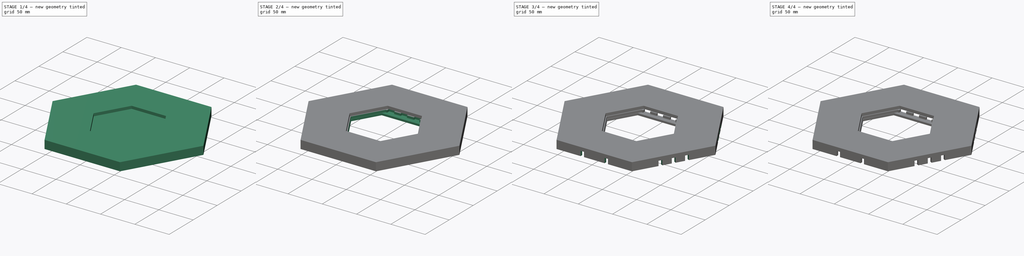
[diagram: build sequence overview — one tinted view per stage of 4, left to right]
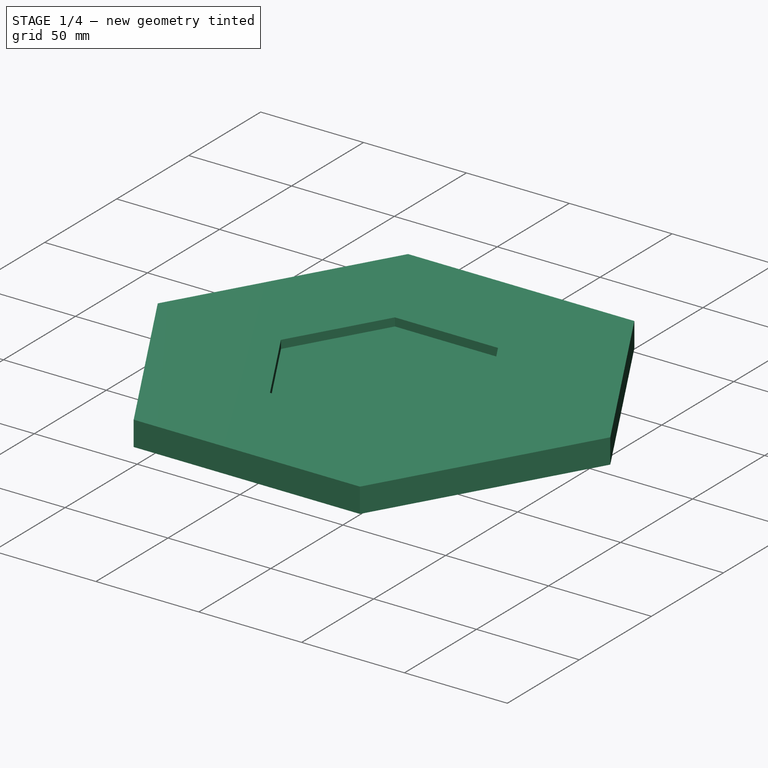
[diagram: stage 1 of 4 — iso view after this stage's code; geometry added in this stage tinted green]
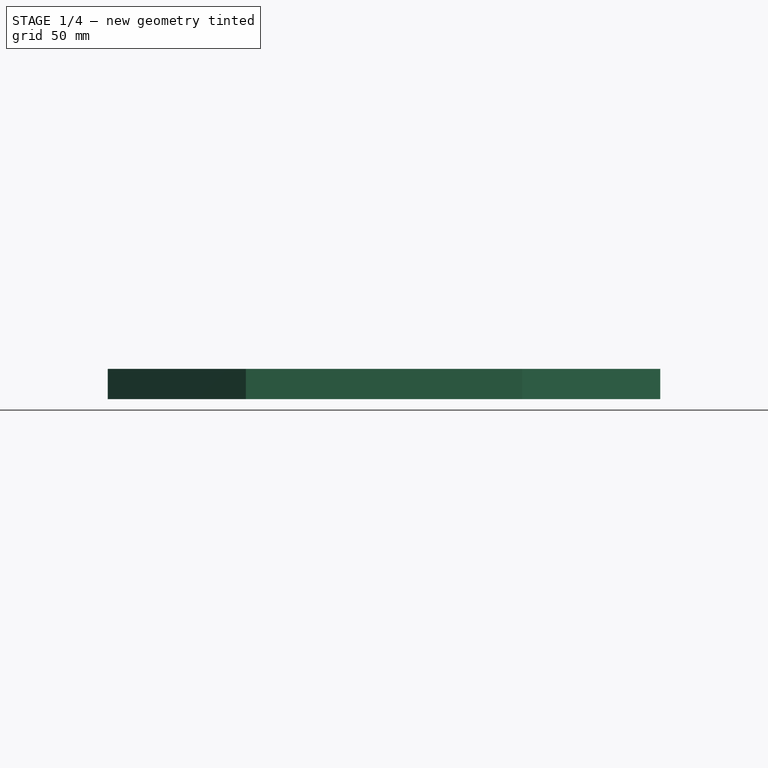
[diagram: stage 1 of 4 — front view after this stage's code; geometry added in this stage tinted green]
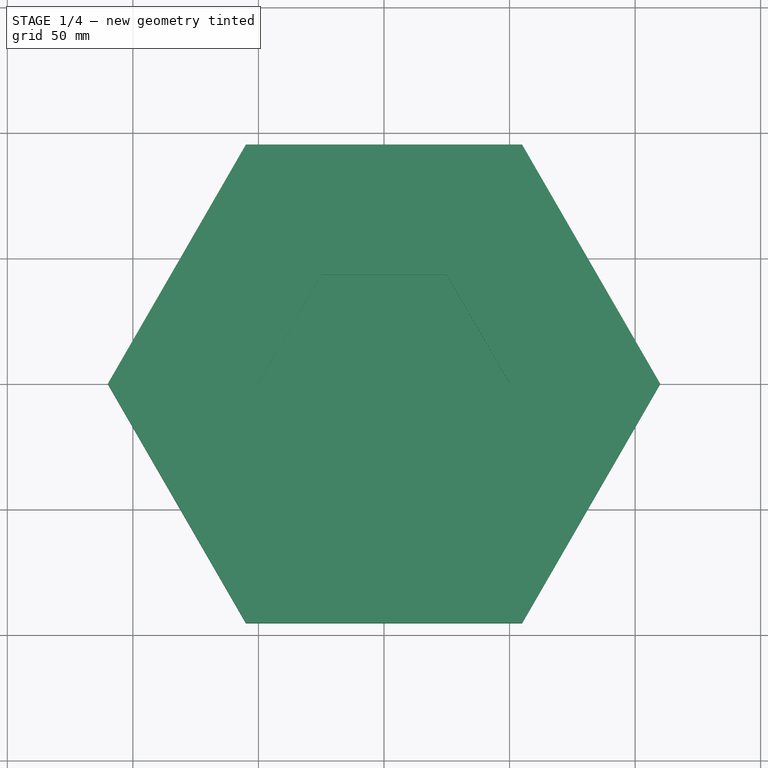
[diagram: stage 1 of 4 — top view after this stage's code; geometry added in this stage tinted green]
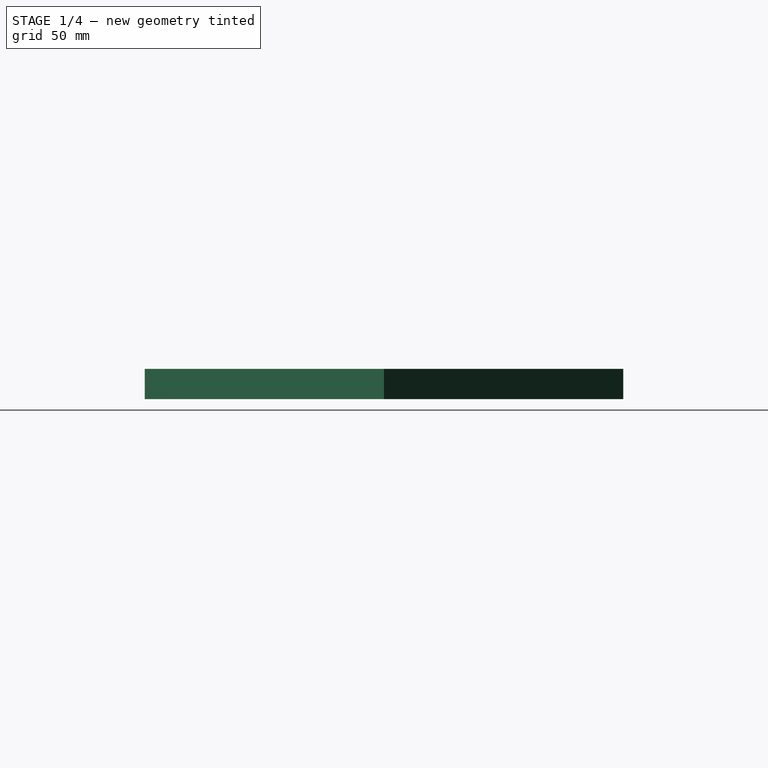
[diagram: stage 1 of 4 — right view after this stage's code; geometry added in this stage tinted green]
FCSTD DOCUMENT  (FreeCAD 0.19R24276 (Git))
Label: sao-wall-frame
License: All rights reserved
LicenseURL: http://en.wikipedia.org/wiki/All_rights_reserved
objects: Sketcher::SketchObject×10, PartDesign::Pocket×8, PartDesign::Pad×2, PartDesign::Body×1
note: 31 computed .brp shape members not serialized (recipe doc carries the construction recipe); baked Part::Feature solids carry a one-line shape summary decoded from their .brp

FEATURE [Sketcher::SketchObject] Sketch  label="Base"
  FullyConstrained = true
  MapMode = 5
  Support = -> [XY_Plane]
  sketch-geometry (7):
    g0: LineSegment StartX=-110 StartY=0 StartZ=0 EndX=-55 EndY=-95.2628 EndZ=0
    g1: LineSegment StartX=-55 StartY=-95.2628 StartZ=0 EndX=55 EndY=-95.2628 EndZ=0
    g2: LineSegment StartX=55 StartY=-95.2628 StartZ=0 EndX=110 EndY=-1.42e-14 EndZ=0
    g3: LineSegment StartX=110 StartY=-1.42e-14 StartZ=0 EndX=55 EndY=95.2628 EndZ=0
    g4: LineSegment StartX=55 StartY=95.2628 StartZ=0 EndX=-55 EndY=95.2628 EndZ=0
    g5: LineSegment StartX=-55 StartY=95.2628 StartZ=0 EndX=-110 EndY=0 EndZ=0
    g6: Circle CenterX=0 CenterY=0 CenterZ=0 NormalX=0 NormalY=0 NormalZ=1 AngleXU=0 Radius=110
  constraints (16):
    c: Coincident(g0,g1)
    c: Coincident(g1,g2)
    c: Coincident(g2,g3)
    c: Coincident(g3,g4)
    c: Coincident(g4,g5)
    c: Coincident(g5,g0)
    c: Equal(g0, g1-g5) x5
    c: PointOnObject(g0,g6)
    c: PointOnObject(g1,g6)
    c: PointOnObject(g2,g6)
    c: PointOnObject(g3,g6)
    c: PointOnObject(g4,g6)
    c: PointOnObject(g5,g6)
    c: Coincident(g6,g-1)
    c: PointOnObject(g5,g-1)
    c: DistanceX(g4,g4) = 110
FEATURE [PartDesign::Pad] Pad
  Direction = (1,1,1)
  Length = 12
  Length2 = 98.42
  Profile = -> Sketch
  Type = 0
FEATURE [Sketcher::SketchObject] Sketch001
  FullyConstrained = true
  MapMode = 5
  Placement = pos=(0,0,12) rot=(0,0,1;0rad)
  Support = -> [Pad]
  sketch-geometry (7):
    g0: LineSegment StartX=-50.1 StartY=0 StartZ=0 EndX=-25.05 EndY=-43.3879 EndZ=0
    g1: LineSegment StartX=-25.05 StartY=-43.3879 StartZ=0 EndX=25.05 EndY=-43.3879 EndZ=0
    g2: LineSegment StartX=25.05 StartY=-43.3879 StartZ=0 EndX=50.1 EndY=7.745e-13 EndZ=0
    g3: LineSegment StartX=50.1 StartY=7.745e-13 StartZ=0 EndX=25.05 EndY=43.3879 EndZ=0
    g4: LineSegment StartX=25.05 StartY=43.3879 StartZ=0 EndX=-25.05 EndY=43.3879 EndZ=0
    g5: LineSegment StartX=-25.05 StartY=43.3879 StartZ=0 EndX=-50.1 EndY=0 EndZ=0
    g6: Circle CenterX=0 CenterY=0 CenterZ=0 NormalX=0 NormalY=0 NormalZ=1 AngleXU=0 Radius=50.1
  constraints (16):
    c: Coincident(g0,g1)
    c: Coincident(g1,g2)
    c: Coincident(g2,g3)
    c: Coincident(g3,g4)
    c: Coincident(g4,g5)
    c: Coincident(g5,g0)
    c: Equal(g0, g1-g5) x5
    c: PointOnObject(g0,g6)
    c: PointOnObject(g1,g6)
    c: PointOnObject(g2,g6)
    c: PointOnObject(g3,g6)
    c: PointOnObject(g4,g6)
    c: PointOnObject(g5,g6)
    c: Coincident(g6,g-1)
    c: PointOnObject(g5,g-1)
    c: DistanceX(g4,g4) = 50.1
FEATURE [PartDesign::Pocket] Pocket
  BaseFeature = -> Pad
  Length = 4
  Length2 = 98.42
  Profile = -> Sketch001
  Type = 0
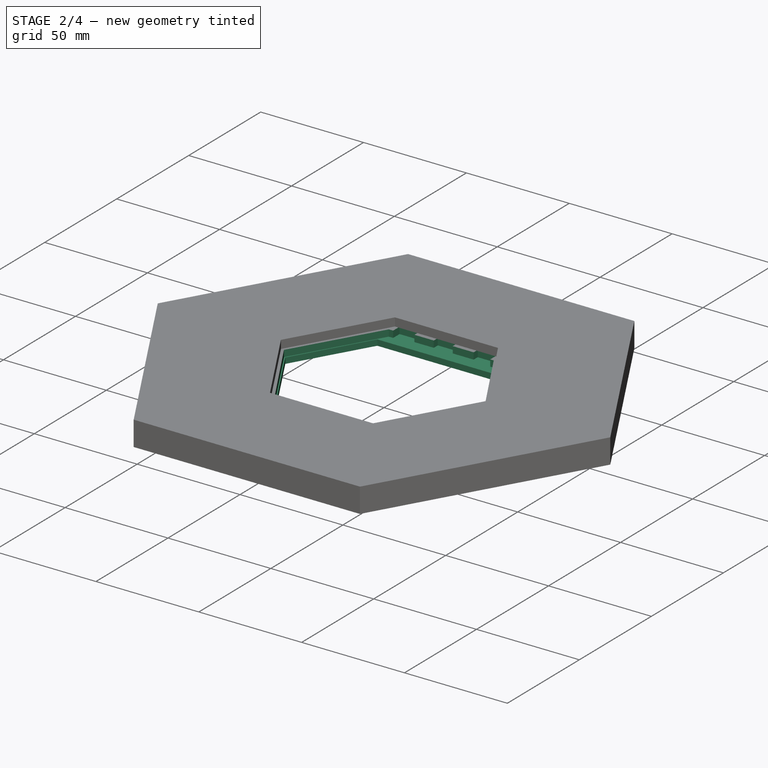
[diagram: stage 2 of 4 — iso view after this stage's code; geometry added in this stage tinted green]
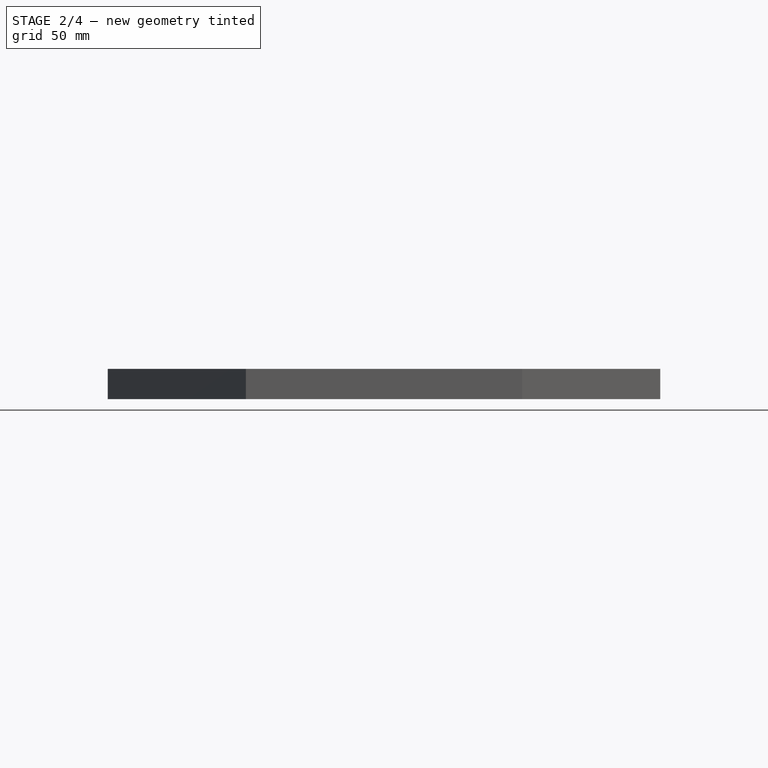
[diagram: stage 2 of 4 — front view after this stage's code; geometry added in this stage tinted green]
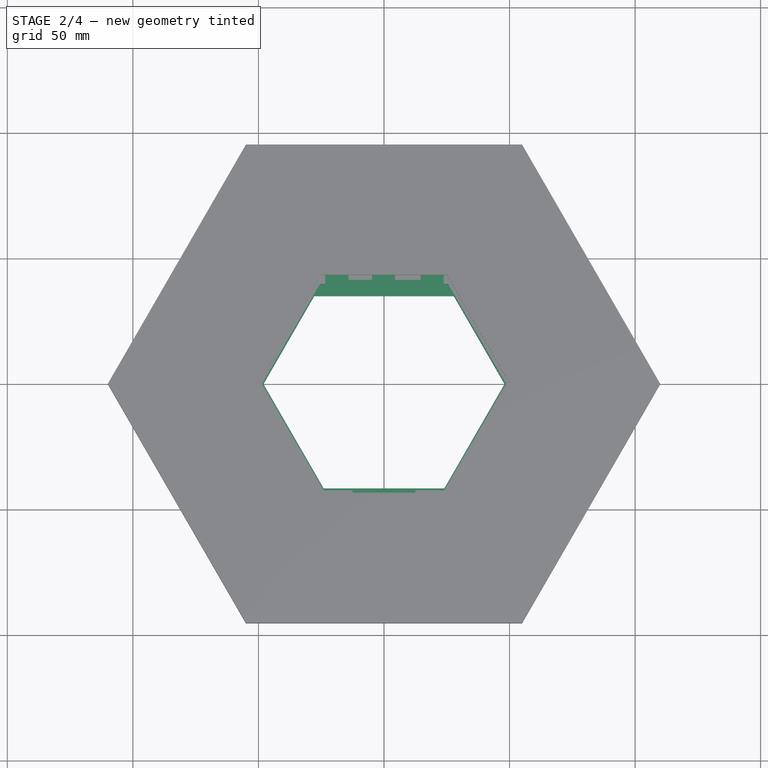
[diagram: stage 2 of 4 — top view after this stage's code; geometry added in this stage tinted green]
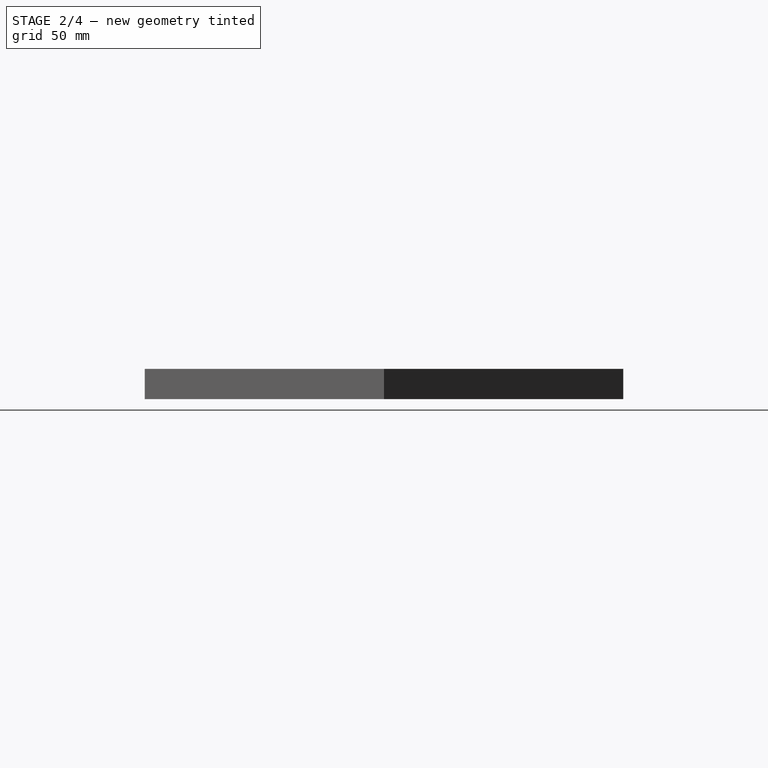
[diagram: stage 2 of 4 — right view after this stage's code; geometry added in this stage tinted green]
FEATURE [Sketcher::SketchObject] Sketch002
  FullyConstrained = false
  MapMode = 5
  Placement = pos=(0,0,0) rot=(1,0,0;3.14159rad)
  Support = -> [Pocket]
  sketch-geometry (12):
    g0: LineSegment StartX=-106 StartY=0 StartZ=0 EndX=-53 EndY=-91.7987 EndZ=0
    g1: LineSegment StartX=53 StartY=-91.7987 StartZ=0 EndX=106 EndY=0 EndZ=0
    g2: Circle CenterX=0 CenterY=0 CenterZ=0 NormalX=0 NormalY=0 NormalZ=1 AngleXU=0 Radius=106
    g3: LineSegment StartX=53 StartY=-91.7987 StartZ=0 EndX=-53 EndY=-91.7987 EndZ=0
    g4: ArcOfCircle CenterX=-1.1e-15 CenterY=92.2987 CenterZ=0 NormalX=0 NormalY=0 NormalZ=1 AngleXU=0 Radius=1.5 StartAngle=3.5e-15 EndAngle=3.14159
    g5: LineSegment StartX=1.5 StartY=91.7987 StartZ=0 EndX=1.5 EndY=92.2987 EndZ=0
    g6: LineSegment StartX=-1.5 StartY=91.7987 StartZ=0 EndX=-1.5 EndY=92.2987 EndZ=0
    g7: LineSegment StartX=-53 StartY=91.7987 StartZ=0 EndX=-1.5 EndY=91.7987 EndZ=0
    g8: LineSegment StartX=1.5 StartY=91.7987 StartZ=0 EndX=53 EndY=91.7987 EndZ=0
    g9: LineSegment StartX=-106 StartY=0 StartZ=0 EndX=-53 EndY=91.7987 EndZ=0
    g10: LineSegment StartX=53 StartY=91.7987 StartZ=0 EndX=106 EndY=0 EndZ=0
    g11: GeomPoint X=1.56174e-05 Y=93.7987 Z=0
  constraints (34):
    c: Equal(g0,g1)
    c: PointOnObject(g0,g2)
    c: PointOnObject(g1,g2)
    c: PointOnObject(g1,g2)
    c: PointOnObject(g8,g2)
    c: PointOnObject(g7,g2)
    c: PointOnObject(g0,g2)
    c: Coincident(g2,g-1)
    c: PointOnObject(g0,g-1)
    c: DistanceX(g7,g8) = 106
    c: Horizontal(g3)
    c: PointOnObject(g1,g-1)
    c: Tangent(g5,g4) = -1.5708
    c: Tangent(g6,g4) = 1.5708
    c: Vertical(g5)
    c: Coincident(g7,g6)
    c: Horizontal(g7)
    c: Coincident(g8,g5)
    c: Horizontal(g8)
    c: DistanceY(g5,g4) = 0.5
    c: DistanceX(g4,g4) = 3
    c: DistanceX(g6,g5) = 3
    c: Equal(g7,g8)
    c: Coincident(g9,g0)
    c: Coincident(g9,g7)
    c: Coincident(g10,g8)
    c: Coincident(g10,g1)
    c: Equal(g9,g10)
    c: Equal(g3,g0)
    c: Equal(g1,g10)
    c: Coincident(g3,g0)
    c: PointOnObject(g3,g2)
    c: PointOnObject(g11,g4)
    c: DistanceY(g5,g11) = 2
FEATURE [PartDesign::Pocket] Pocket001
  BaseFeature = -> Pocket
  Length = 2
  Length2 = 98.42
  Profile = -> Sketch002
  Type = 0
FEATURE [Sketcher::SketchObject] Sketch003
  FullyConstrained = true
  MapMode = 5
  Placement = pos=(0,0,8) rot=(0,0,1;0rad)
  Support = -> [Pocket001]
  sketch-geometry (23):
    g0: LineSegment StartX=-48.615 StartY=0 StartZ=0 EndX=-24 EndY=-42.3514 EndZ=0
    g1: LineSegment StartX=24 StartY=-42.3514 StartZ=0 EndX=48.615 EndY=0 EndZ=0
    g2: LineSegment StartX=48.615 StartY=0 StartZ=0 EndX=25.5 EndY=39.7706 EndZ=0
    g3: LineSegment StartX=-25.5 StartY=39.7706 StartZ=0 EndX=-48.615 EndY=0 EndZ=0
    g4: LineSegment StartX=-23.4 StartY=39.7706 StartZ=0 EndX=-23.4 EndY=44.21 EndZ=0
    g5: LineSegment StartX=23.8 StartY=44.21 StartZ=0 EndX=23.8 EndY=39.7706 EndZ=0
    g6: LineSegment StartX=-24 StartY=-42.3514 StartZ=0 EndX=-12.5 EndY=-42.3514 EndZ=0
    g7: LineSegment StartX=-12.5 StartY=-42.3514 StartZ=0 EndX=-12.5 EndY=-44.3514 EndZ=0
    g8: LineSegment StartX=-12.5 StartY=-44.3514 StartZ=0 EndX=12.5 EndY=-44.3514 EndZ=0
    g9: LineSegment StartX=12.5 StartY=-44.3514 StartZ=0 EndX=12.5 EndY=-42.3514 EndZ=0
    g10: LineSegment StartX=12.5 StartY=-42.3514 StartZ=0 EndX=24 EndY=-42.3514 EndZ=0
    g11: LineSegment StartX=-25.5 StartY=39.7706 StartZ=0 EndX=-23.4 EndY=39.7706 EndZ=0
    g12: LineSegment StartX=23.8 StartY=39.7706 StartZ=0 EndX=25.5 EndY=39.7706 EndZ=0
    g13: LineSegment StartX=-23.4 StartY=44.21 StartZ=0 EndX=-14.2 EndY=44.21 EndZ=0
    g14: LineSegment StartX=-14.2 StartY=44.21 StartZ=0 EndX=-14.2 EndY=41.41 EndZ=0
    g15: LineSegment StartX=-14.2 StartY=41.41 StartZ=0 EndX=-4.8 EndY=41.41 EndZ=0
    g16: LineSegment StartX=-4.8 StartY=41.41 StartZ=0 EndX=-4.8 EndY=44.21 EndZ=0
    g17: LineSegment StartX=-4.8 StartY=44.21 StartZ=0 EndX=4.4 EndY=44.21 EndZ=0
    g18: LineSegment StartX=4.4 StartY=44.21 StartZ=0 EndX=4.4 EndY=41.41 EndZ=0
    g19: LineSegment StartX=4.4 StartY=41.41 StartZ=0 EndX=14.6 EndY=41.41 EndZ=0
    g20: LineSegment StartX=14.6 StartY=41.41 StartZ=0 EndX=14.6 EndY=44.21 EndZ=0
    g21: LineSegment StartX=14.6 StartY=44.21 StartZ=0 EndX=23.8 EndY=44.21 EndZ=0
    g22: LineSegment StartX=-25 StartY=43.41 StartZ=0 EndX=25 EndY=43.41 EndZ=0
  constraints (68):
    c: Coincident(g1,g2)
    c: Coincident(g3,g0)
    c: Equal(g0,g1)
    c: PointOnObject(g3,g-1)
    c: Equal(g3,g2)
    c: DistanceX(g0,g1) = 48
    c: Parallel(g2,g0)
    c: Parallel(g1,g3)
    c: Vertical(g4)
    c: Vertical(g5)
    c: Coincident(g6,g0)
    c: Horizontal(g6)
    c: Coincident(g7,g6)
    c: Vertical(g7)
    c: Horizontal(g8)
    c: Coincident(g10,g1)
    c: Horizontal(g10)
    c: Vertical(g9)
    c: Coincident(g10,g9)
    c: DistanceX(g6,g9) = 25
    c: Coincident(g8,g7)
    c: Coincident(g8,g9)
    c: Symmetric(g6,g9,g-2)
    c: DistanceY(g7,g6) = 2
    c: Distance(g3) = 46
    c: Coincident(g11,g3)
    c: Coincident(g11,g4)
    c: Horizontal(g11)
    c: Coincident(g12,g5)
    c: Coincident(g12,g2)
    c: Horizontal(g12)
    c: DistanceX(g0,g1) = 97.23
    c: Symmetric(g0,g1,g-2)
    c: DistanceX(g3,g2) = 51
    c: Coincident(g13,g4)
    c: Horizontal(g13)
    c: Coincident(g14,g13)
    c: Vertical(g14)
    c: Horizontal(g15)
    c: Vertical(g16)
    c: Horizontal(g17)
    c: Vertical(g18)
    c: Horizontal(g19)
    c: Vertical(g20)
    c: Coincident(g21,g5)
    c: Horizontal(g21)
    c: Equal(g4,g5)
    c: Equal(g14,g16)
    c: Equal(g16,g18)
    c: Coincident(g20,g21)
    c: Coincident(g16,g17)
    c: Coincident(g15,g16)
    c: Coincident(g15,g14)
    c: Coincident(g18,g17)
    c: Coincident(g18,g19)
    c: Equal(g13,g17)
    c: Equal(g17,g21)
    c: DistanceX(g17,g17) = 9.2
    c: Coincident(g19,g20)
    c: DistanceX(g19,g19) = 10.2
    c: DistanceX(g15,g15) = 9.4
    c: DistanceX(g22,g22) = 50
    c: Symmetric(g22,g22,g-2)
    c: DistanceX(g22,g4) = 1.6
    c: DistanceX(g5,g22) = 1.2
    c: DistanceY(g22,g4) = 0.8
    c: DistanceY(g14,g22) = 2
    c: DistanceY(g-1,g22) = 43.41
FEATURE [PartDesign::Pocket] Pocket002
  BaseFeature = -> Pocket001
  Length = 3.2
  Length2 = 100
  Profile = -> Sketch003
  Type = 0
FEATURE [Sketcher::SketchObject] Sketch005
  FullyConstrained = true
  MapMode = 5
  Placement = pos=(0,0,4.8) rot=(0,0,1;0rad)
  Support = -> [Pocket002]
  sketch-geometry (7):
    g0: LineSegment StartX=-24 StartY=-41.5692 StartZ=0 EndX=24 EndY=-41.5692 EndZ=0
    g1: LineSegment StartX=48 StartY=0 StartZ=0 EndX=27.7927 EndY=35 EndZ=0
    g2: LineSegment StartX=27.7927 StartY=35 StartZ=0 EndX=-27.7927 EndY=35 EndZ=0
    g3: LineSegment StartX=-27.7927 StartY=35 StartZ=0 EndX=-48 EndY=0 EndZ=0
    g4: LineSegment StartX=-48 StartY=0 StartZ=0 EndX=-24 EndY=-41.5692 EndZ=0
    g5: Circle CenterX=0 CenterY=0 CenterZ=0 NormalX=0 NormalY=0 NormalZ=1 AngleXU=0 Radius=48
    g6: LineSegment StartX=48 StartY=0 StartZ=0 EndX=24 EndY=-41.5692 EndZ=0
  constraints (20):
    c: Coincident(g1,g2)
    c: Coincident(g2,g3)
    c: Coincident(g3,g4)
    c: Coincident(g4,g0)
    c: Equal(g0,g4)
    c: PointOnObject(g0,g5)
    c: PointOnObject(g1,g5)
    c: PointOnObject(g3,g5)
    c: PointOnObject(g4,g5)
    c: Coincident(g5,g-1)
    c: DistanceX(g0,g0) = 48
    c: PointOnObject(g3,g-1)
    c: Parallel(g2,g0)
    c: PointOnObject(g1,g-1)
    c: Parallel(g1,g4)
    c: Coincident(g6,g1)
    c: Coincident(g6,g0)
    c: Parallel(g6,g3)
    c: Equal(g6,g4)
    c: DistanceY(g-1,g2) = 35
FEATURE [PartDesign::Pocket] Pocket003
  BaseFeature = -> Pocket002
  Length = 5
  Length2 = 100
  Profile = -> Sketch005
  Type = 0
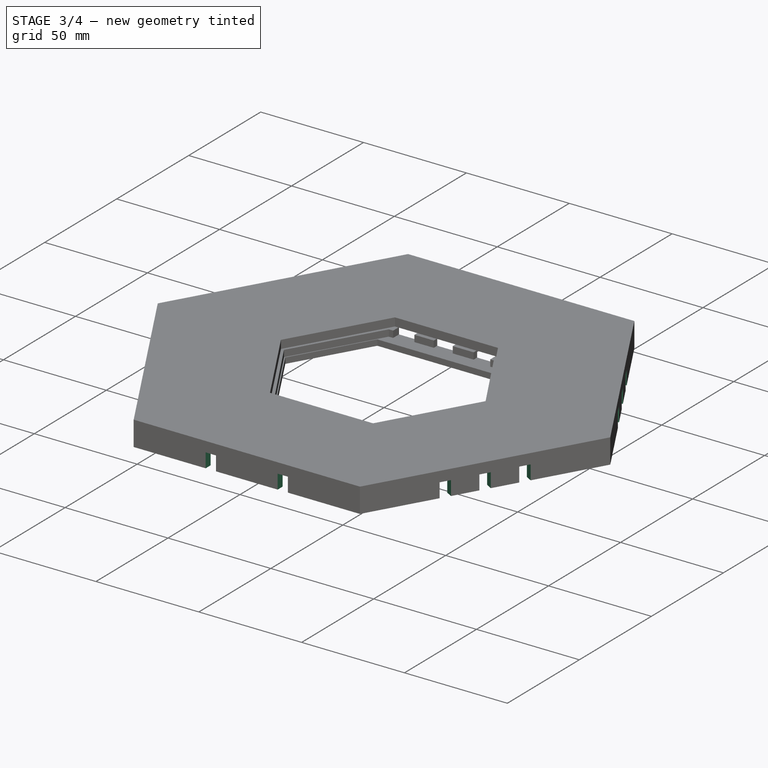
[diagram: stage 3 of 4 — iso view after this stage's code; geometry added in this stage tinted green]
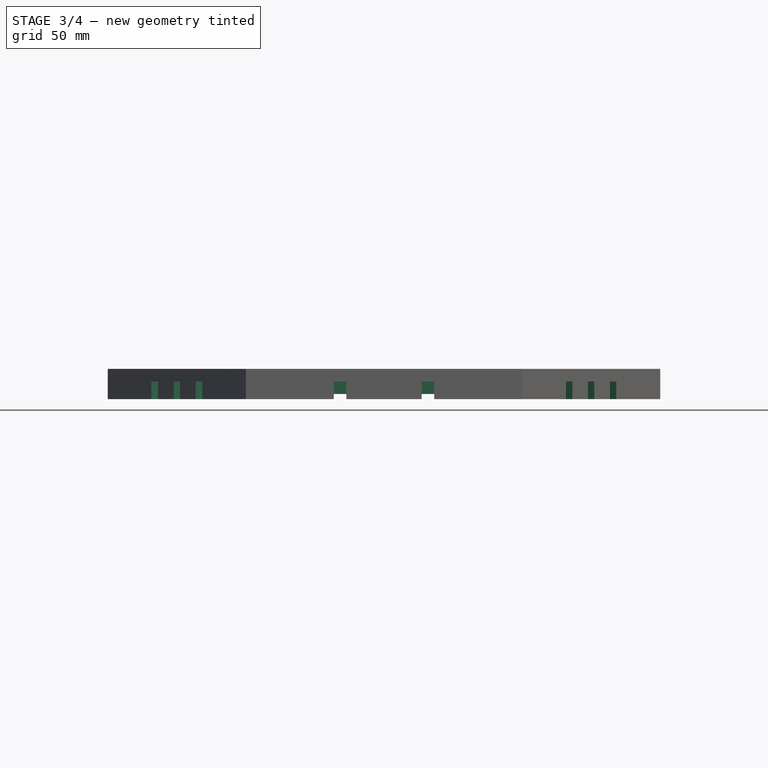
[diagram: stage 3 of 4 — front view after this stage's code; geometry added in this stage tinted green]
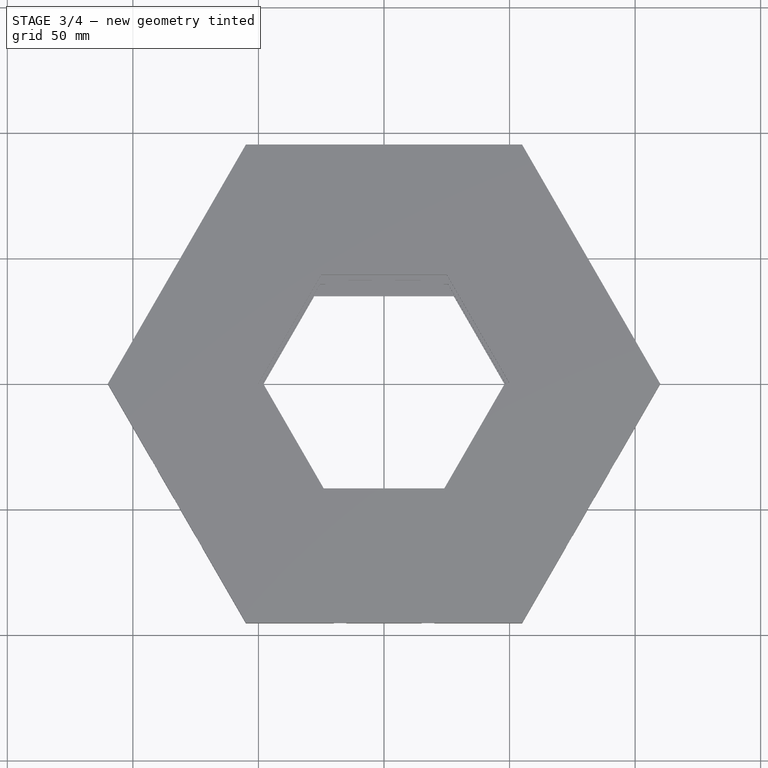
[diagram: stage 3 of 4 — top view after this stage's code; geometry added in this stage tinted green]
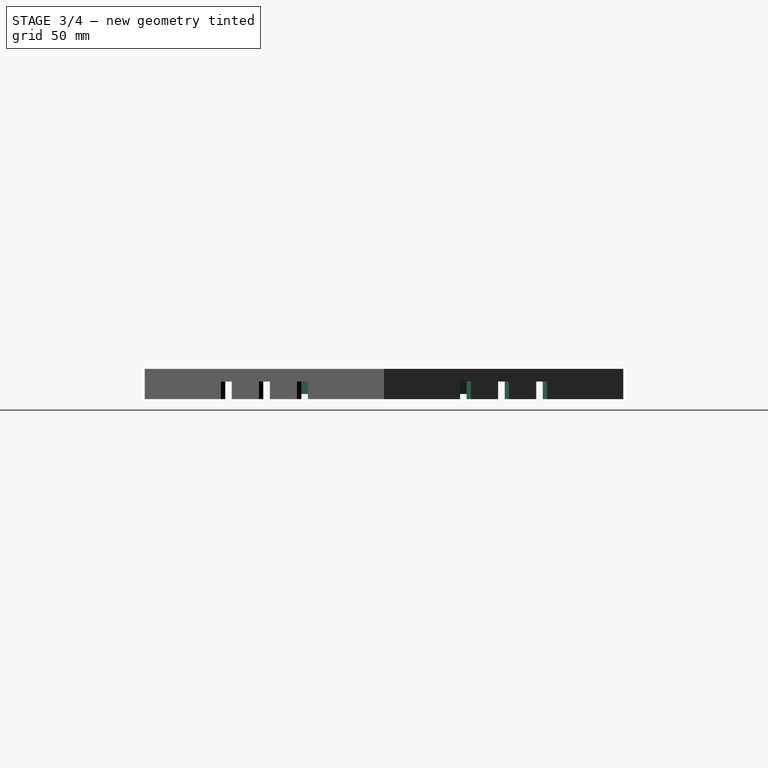
[diagram: stage 3 of 4 — right view after this stage's code; geometry added in this stage tinted green]
FEATURE [Sketcher::SketchObject] Sketch006
  FullyConstrained = false
  MapMode = 5
  Placement = pos=(0,0,2) rot=(1,0,0;3.14159rad)
  Support = -> [Pocket003]
  sketch-geometry (14):
    g0: LineSegment StartX=-26.5 StartY=-43.8 StartZ=0 EndX=26.5 EndY=-43.8 EndZ=0
    g1: LineSegment StartX=-52 StartY=0 StartZ=0 EndX=-26.5 EndY=-43.8 EndZ=0
    g2: LineSegment StartX=52 StartY=0 StartZ=0 EndX=26.5 EndY=-43.8 EndZ=0
    g3: LineSegment StartX=-52 StartY=0 StartZ=0 EndX=-26 EndY=45.0333 EndZ=0
    g4: LineSegment StartX=-26 StartY=45.0333 StartZ=0 EndX=26 EndY=45.0333 EndZ=0
    g5: LineSegment StartX=26 StartY=45.0333 StartZ=0 EndX=52 EndY=0 EndZ=0
    g6: LineSegment StartX=106 StartY=0 StartZ=0 EndX=53 EndY=91.7987 EndZ=0
    g7: LineSegment StartX=53 StartY=91.7987 StartZ=0 EndX=-53 EndY=91.7987 EndZ=0
    g8: LineSegment StartX=-53 StartY=91.7987 StartZ=0 EndX=-106 EndY=-1.42e-14 EndZ=0
    g9: LineSegment StartX=-106 StartY=-1.42e-14 StartZ=0 EndX=-53 EndY=-91.7987 EndZ=0
    g10: LineSegment StartX=-53 StartY=-91.7987 StartZ=0 EndX=53 EndY=-91.7987 EndZ=0
    g11: LineSegment StartX=53 StartY=-91.7987 StartZ=0 EndX=106 EndY=0 EndZ=0
    g12: Circle CenterX=0 CenterY=0 CenterZ=0 NormalX=0 NormalY=0 NormalZ=1 AngleXU=0 Radius=106
    g13: GeomPoint X=-54.9972 Y=-95.2667 Z=0
  constraints (36):
    c: DistanceX(g0,g0) = 53
    c: Symmetric(g0,g0,g-2)
    c: PointOnObject(g1,g-1)
    c: Coincident(g1,g0)
    c: Coincident(g2,g0)
    c: DistanceX(g1,g2) = 104
    c: Symmetric(g2,g1,g-2)
    c: Coincident(g3,g1)
    c: Horizontal(g4)
    c: Coincident(g5,g2)
    c: DistanceX(g4,g4) = 52
    c: Coincident(g3,g4)
    c: Coincident(g5,g4)
    c: Coincident(g6,g7)
    c: Coincident(g7,g8)
    c: Coincident(g8,g9)
    c: Coincident(g9,g10)
    c: Coincident(g10,g11)
    c: Coincident(g11,g6)
    c: Equal(g6, g7-g11) x5
    c: PointOnObject(g6,g12)
    c: PointOnObject(g7,g12)
    c: PointOnObject(g8,g12)
    c: PointOnObject(g9,g12)
    c: PointOnObject(g10,g12)
    c: PointOnObject(g11,g12)
    c: Coincident(g12,g-1)
    c: PointOnObject(g11,g-1)
    c: DistanceX(g7,g7) = 106
    c: DistanceY(g0,g-1) = 43.8
    c: Equal(g4,g3)
    c: Equal(g4,g5)
    c: DistanceY(g9,g0) = 47.9987
    c: DistanceX(g0,g10) = 26.5
    c: DistanceY(g7,g7) = -2.3e-15
    c: DistanceY(g13,g9) = 3.46801
FEATURE [PartDesign::Pocket] Pocket004
  BaseFeature = -> Pocket003
  Length = 8
  Length2 = 100
  Profile = -> Sketch006
  Type = 0
FEATURE [Sketcher::SketchObject] Sketch007
  FullyConstrained = true
  MapMode = 5
  Placement = pos=(0,-91.7987,0) rot=(0,0.707107,0.707107;3.14159rad)
  Support = -> [Pocket004]
  sketch-geometry (4):
    g0: LineSegment StartX=-3 StartY=9 StartZ=0 EndX=3 EndY=9 EndZ=0
    g1: LineSegment StartX=3 StartY=9 StartZ=0 EndX=3 EndY=2 EndZ=0
    g2: LineSegment StartX=3 StartY=2 StartZ=0 EndX=-3 EndY=2 EndZ=0
    g3: LineSegment StartX=-3 StartY=2 StartZ=0 EndX=-3 EndY=9 EndZ=0
  constraints (11):
    c: Coincident(g0,g1)
    c: Coincident(g1,g2)
    c: Coincident(g2,g3)
    c: Coincident(g3,g0)
    c: Horizontal(g0)
    c: Vertical(g1)
    c: Vertical(g3)
    c: Symmetric(g2,g1,g-2)
    c: DistanceY(g2,g0) = 7
    c: DistanceX(g2,g1) = 6
    c: DistanceY(g-1,g2) = 2
FEATURE [PartDesign::Pocket] Pocket005
  BaseFeature = -> Pocket004
  Length = 2
  Length2 = 100
  Profile = -> Sketch007
  Type = 0
FEATURE [Sketcher::SketchObject] Sketch008
  FullyConstrained = false
  MapMode = 5
  Placement = pos=(0,0,0) rot=(1,0,0;3.14159rad)
  Support = -> [Pocket005]
  sketch-geometry (70):
    g0: LineSegment StartX=-20 StartY=-96.1554 StartZ=0 EndX=-20 EndY=-90.1554 EndZ=0
    g1: LineSegment StartX=-20 StartY=-96.1554 StartZ=0 EndX=-15 EndY=-96.1554 EndZ=0
    g2: LineSegment StartX=-15 StartY=-96.1554 StartZ=0 EndX=-15 EndY=-90.1554 EndZ=0
    g3: LineSegment StartX=-20 StartY=-90.1554 StartZ=0 EndX=-15 EndY=-90.1554 EndZ=0
    g4: LineSegment StartX=15 StartY=-96.1554 StartZ=0 EndX=15 EndY=-90.1554 EndZ=0
    g5: LineSegment StartX=15 StartY=-96.1554 StartZ=0 EndX=20 EndY=-96.1554 EndZ=0
    g6: LineSegment StartX=20 StartY=-96.1554 StartZ=0 EndX=20 EndY=-90.1554 EndZ=0
    g7: LineSegment StartX=15 StartY=-90.1554 StartZ=0 EndX=20 EndY=-90.1554 EndZ=0
    g8: LineSegment StartX=-20 StartY=89.8446 StartZ=0 EndX=-20 EndY=95.8446 EndZ=0
    g9: LineSegment StartX=-20 StartY=89.8446 StartZ=0 EndX=-15 EndY=89.8446 EndZ=0
    g10: LineSegment StartX=-15 StartY=89.8446 StartZ=0 EndX=-15 EndY=95.8446 EndZ=0
    g11: LineSegment StartX=-20 StartY=95.8446 StartZ=0 EndX=-15 EndY=95.8446 EndZ=0
    g12: LineSegment StartX=15 StartY=89.8446 StartZ=0 EndX=15 EndY=95.8446 EndZ=0
    g13: LineSegment StartX=15 StartY=89.8446 StartZ=0 EndX=20 EndY=89.8446 EndZ=0
    g14: LineSegment StartX=20 StartY=89.8446 StartZ=0 EndX=20 EndY=95.8446 EndZ=0
    g15: LineSegment StartX=15 StartY=95.8446 StartZ=0 EndX=20 EndY=95.8446 EndZ=0
    g16: LineSegment StartX=72.9436 StartY=-65.208 StartZ=0 EndX=67.7475 EndY=-62.208 EndZ=0
    g17: LineSegment StartX=72.9436 StartY=-65.208 StartZ=0 EndX=75.4436 EndY=-60.8779 EndZ=0
    g18: LineSegment StartX=75.4436 StartY=-60.8779 StartZ=0 EndX=70.2475 EndY=-57.8779 EndZ=0
    g19: LineSegment StartX=67.7475 StartY=-62.208 StartZ=0 EndX=70.2475 EndY=-57.8779 EndZ=0
    g20: LineSegment StartX=91.082 StartY=-35.2763 StartZ=0 EndX=85.8858 EndY=-32.2763 EndZ=0
    g21: LineSegment StartX=91.082 StartY=-35.2763 StartZ=0 EndX=93.582 EndY=-30.9462 EndZ=0
    g22: LineSegment StartX=93.582 StartY=-30.9462 StartZ=0 EndX=88.3858 EndY=-27.9462 EndZ=0
    g23: LineSegment StartX=85.8858 StartY=-32.2763 StartZ=0 EndX=88.3858 EndY=-27.9462 EndZ=0
    g24: LineSegment StartX=-85.4193 StartY=49.3168 StartZ=0 EndX=87.7858 EndY=-50.6832 EndZ=0
    g25: LineSegment StartX=84.6918 StartY=48.8969 StartZ=0 EndX=-88.5132 EndY=-51.1031 EndZ=0
    g26: LineSegment StartX=-88.3079 StartY=27.4955 StartZ=0 EndX=-93.504 EndY=30.4955 EndZ=0
    g27: LineSegment StartX=-88.3079 StartY=27.4955 StartZ=0 EndX=-85.6368 EndY=32.1219 EndZ=0
    g28: LineSegment StartX=-85.6368 StartY=32.1219 StartZ=0 EndX=-90.833 EndY=35.1219 EndZ=0
    g29: LineSegment StartX=-93.504 StartY=30.4955 StartZ=0 EndX=-90.833 EndY=35.1219 EndZ=0
    g30: LineSegment StartX=-70.6373 StartY=58.103 StartZ=0 EndX=-75.8335 EndY=61.103 EndZ=0
    g31: LineSegment StartX=-70.6373 StartY=58.103 StartZ=0 EndX=-67.9663 EndY=62.7294 EndZ=0
    g32: LineSegment StartX=-67.9663 StartY=62.7294 StartZ=0 EndX=-73.1624 EndY=65.7294 EndZ=0
    g33: LineSegment StartX=-75.8335 StartY=61.103 StartZ=0 EndX=-73.1624 EndY=65.7294 EndZ=0
    g34: LineSegment StartX=68.026 StartY=62.3688 StartZ=0 EndX=73.2221 EndY=65.3688 EndZ=0
    g35: LineSegment StartX=68.026 StartY=62.3688 StartZ=0 EndX=70.526 EndY=58.0387 EndZ=0
    g36: LineSegment StartX=70.526 StartY=58.0387 StartZ=0 EndX=75.7221 EndY=61.0387 EndZ=0
    g37: LineSegment StartX=73.2221 StartY=65.3688 StartZ=0 EndX=75.7221 EndY=61.0387 EndZ=0
    g38: LineSegment StartX=85.526 StartY=32.0579 StartZ=0 EndX=90.7221 EndY=35.0579 EndZ=0
    g39: LineSegment StartX=85.526 StartY=32.0579 StartZ=0 EndX=88.026 EndY=27.7278 EndZ=0
    g40: LineSegment StartX=88.026 StartY=27.7278 StartZ=0 EndX=93.2221 EndY=30.7278 EndZ=0
    g41: LineSegment StartX=90.7221 StartY=35.0579 StartZ=0 EndX=93.2221 EndY=30.7278 EndZ=0
    g42: LineSegment StartX=-93.4774 StartY=-30.8752 StartZ=0 EndX=-88.2812 EndY=-27.8752 EndZ=0
    g43: LineSegment StartX=-93.4774 StartY=-30.8752 StartZ=0 EndX=-90.9774 EndY=-35.2053 EndZ=0
    g44: LineSegment StartX=-90.9774 StartY=-35.2053 StartZ=0 EndX=-85.7812 EndY=-32.2053 EndZ=0
    g45: LineSegment StartX=-88.2812 StartY=-27.8752 StartZ=0 EndX=-85.7812 EndY=-32.2053 EndZ=0
    g46: LineSegment StartX=-75.9426 StartY=-61.166 StartZ=0 EndX=-70.7465 EndY=-58.166 EndZ=0
    g47: LineSegment StartX=-75.9426 StartY=-61.166 StartZ=0 EndX=-73.4426 EndY=-65.4961 EndZ=0
    g48: LineSegment StartX=-73.4426 StartY=-65.4961 StartZ=0 EndX=-68.2465 EndY=-62.4961 EndZ=0
    g49: LineSegment StartX=-70.7465 StartY=-58.166 StartZ=0 EndX=-68.2465 EndY=-62.4961 EndZ=0
    g50: LineSegment StartX=-2.5 StartY=-96.1554 StartZ=0 EndX=-2.5 EndY=-90.98 EndZ=0
    g51: LineSegment StartX=-2.5 StartY=-96.1554 StartZ=0 EndX=2.5 EndY=-96.1554 EndZ=0
    g52: LineSegment StartX=2.5 StartY=-96.1554 StartZ=0 EndX=2.5 EndY=-90.98 EndZ=0
    g53: LineSegment StartX=-2.5 StartY=-90.98 StartZ=0 EndX=2.5 EndY=-90.98 EndZ=0
    g54: LineSegment StartX=-85.2256 StartY=-46.3183 StartZ=0 EndX=-80.0294 EndY=-43.3183 EndZ=0
    g55: LineSegment StartX=-85.2256 StartY=-46.3183 StartZ=0 EndX=-82.7256 EndY=-50.6484 EndZ=0
    g56: LineSegment StartX=-82.7256 StartY=-50.6484 StartZ=0 EndX=-77.5294 EndY=-47.6484 EndZ=0
    g57: LineSegment StartX=-80.0294 StartY=-43.3183 StartZ=0 EndX=-77.5294 EndY=-47.6484 EndZ=0
    g58: LineSegment StartX=76.4271 StartY=47.0119 StartZ=0 EndX=81.6232 EndY=50.0119 EndZ=0
    g59: LineSegment StartX=76.4271 StartY=47.0119 StartZ=0 EndX=78.9271 EndY=42.6818 EndZ=0
    g60: LineSegment StartX=78.9271 StartY=42.6818 StartZ=0 EndX=84.1232 EndY=45.6818 EndZ=0
    g61: LineSegment StartX=81.6232 StartY=50.0119 StartZ=0 EndX=84.1232 EndY=45.6818 EndZ=0
    g62: LineSegment StartX=-79.1843 StartY=42.8303 StartZ=0 EndX=-84.3805 EndY=45.8303 EndZ=0
    g63: LineSegment StartX=-79.1843 StartY=42.8303 StartZ=0 EndX=-76.6843 EndY=47.1605 EndZ=0
    g64: LineSegment StartX=-76.6843 StartY=47.1605 StartZ=0 EndX=-81.8805 EndY=50.1605 EndZ=0
    g65: LineSegment StartX=-84.3805 StartY=45.8303 StartZ=0 EndX=-81.8805 EndY=50.1605 EndZ=0
    g66: LineSegment StartX=82.8683 StartY=-50.7308 StartZ=0 EndX=77.6722 EndY=-47.7308 EndZ=0
    g67: LineSegment StartX=82.8683 StartY=-50.7308 StartZ=0 EndX=85.3683 EndY=-46.4007 EndZ=0
    g68: LineSegment StartX=85.3683 StartY=-46.4007 StartZ=0 EndX=80.1722 EndY=-43.4007 EndZ=0
    g69: LineSegment StartX=77.6722 StartY=-47.7308 StartZ=0 EndX=80.1722 EndY=-43.4007 EndZ=0
  constraints (192):
    c: Coincident(g1,g0)
    c: Coincident(g3,g0)
    c: Coincident(g3,g2)
    c: Perpendicular(g2,g1)
    c: Equal(g1,g3)
    c: Equal(g0,g2)
    c: Coincident(g2,g1)
    c: Parallel(g2,g-2)
    c: Coincident(g5,g4)
    c: Coincident(g7,g4)
    c: Coincident(g7,g6)
    c: Perpendicular(g6,g5)
    c: Equal(g5,g7)
    c: Equal(g4,g6)
    c: Coincident(g6,g5)
    c: Distance(g2,g4) = 30
    c: Equal(g4,g2)
    c: Equal(g3,g7)
    c: Distance(g1,g4) = 30
    c: Distance(g7) = 5
    c: Distance(g6,g5) = 6
    c: DistanceX(g1,g-1) = 15
    c: Coincident(g9,g8)
    c: Coincident(g11,g8)
    c: Coincident(g11,g10)
    c: Perpendicular(g10,g9)
    c: Equal(g9,g11)
    c: Equal(g8,g10)
    c: Coincident(g10,g9)
    c: Coincident(g13,g12)
    c: Coincident(g15,g12)
    c: Coincident(g15,g14)
    c: Perpendicular(g14,g13)
    c: Equal(g13,g15)
    c: Equal(g12,g14)
    c: Coincident(g14,g13)
    c: Distance(g10,g12) = 30
    c: Equal(g12,g10)
    c: Equal(g11,g15)
    c: Distance(g9,g12) = 30
    c: Equal(g7,g15) = 5
    c: Distance(g14,g13) = 6
    c: DistanceX(g10,g-1) = 15
    c: Coincident(g17,g16)
    c: Coincident(g19,g16)
    c: Coincident(g19,g18)
    c: Perpendicular(g18,g17)
    c: Equal(g17,g19)
    c: Equal(g16,g18)
    c: Coincident(g18,g17)
    c: Coincident(g21,g20)
    c: Coincident(g23,g20)
    c: Coincident(g23,g22)
    c: Perpendicular(g22,g21)
    c: Equal(g21,g23)
    c: Equal(g20,g22)
    c: Coincident(g22,g21)
    c: Distance(g18,g20) = 30
    c: Equal(g20,g18)
    c: Equal(g19,g23)
    c: Distance(g17,g20) = 30
    c: Equal(g7,g23) = 5
    c: Distance(g22,g21) = 6
    c: PointOnObject(g-1,g24)
    c: Angle(g24,g-1) = 0.523599
    c: Distance(g24) = 200
    c: Equal(g24,g25) = 200
    c: PointOnObject(g-1,g25)
    c: Angle(g25,g-1) = 2.61799
    c: Distance(g18,g24) = 15
    c: Distance(g17,g24) = 15
    c: Coincident(g27,g26)
    c: Coincident(g29,g26)
    c: Coincident(g29,g28)
    c: Perpendicular(g28,g27)
    c: Equal(g27,g29)
    c: Equal(g26,g28)
    c: Coincident(g28,g27)
    c: Coincident(g31,g30)
    c: Coincident(g33,g30)
    c: Coincident(g33,g32)
    c: Perpendicular(g32,g31)
    c: Equal(g31,g33)
    c: Equal(g30,g32)
    c: Coincident(g32,g31)
    c: Distance(g28,g30) = 30
    c: Equal(g30,g28)
    c: Equal(g29,g33)
    c: Distance(g27,g30) = 30
    c: Distance(g32,g31) = 6
    c: Distance(g28,g24) = 15
    c: Distance(g27,g24) = 15
    c: Coincident(g35,g34)
    c: Coincident(g37,g34)
    c: Coincident(g37,g36)
    c: Perpendicular(g36,g35)
    c: Equal(g35,g37)
    c: Equal(g34,g36)
    c: Coincident(g36,g35)
    c: Coincident(g39,g38)
    c: Coincident(g41,g38)
    c: Coincident(g41,g40)
    c: Perpendicular(g40,g39)
    c: Equal(g39,g41)
    c: Equal(g38,g40)
    c: Coincident(g40,g39)
    c: Distance(g36,g38) = 30
    c: Equal(g38,g36)
    c: Equal(g37,g41)
    c: Distance(g35,g38) = 30
    c: Distance(g40,g39) = 6
    c: Distance(g41) = 5
    c: Distance(g36,g25) = 15
    c: Distance(g35,g25) = 15
    c: Coincident(g43,g42)
    c: Coincident(g45,g42)
    c: Coincident(g45,g44)
    c: Perpendicular(g44,g43)
    c: Equal(g43,g45)
    c: Equal(g42,g44)
    c: Coincident(g44,g43)
    c: Coincident(g47,g46)
    c: Coincident(g49,g46)
    c: Coincident(g49,g48)
    c: Perpendicular(g48,g47)
    c: Equal(g47,g49)
    c: Equal(g46,g48)
    c: Coincident(g48,g47)
    c: Distance(g44,g46) = 30
    c: Equal(g46,g44)
    c: Equal(g45,g49)
    c: Distance(g43,g46) = 30
    c: Distance(g48,g47) = 6
    c: Equal(g41,g49) = 5
    c: Distance(g44,g25) = 15
    c: Distance(g43,g25) = 15
    c: Distance(g0,g8) = 180
    c: Distance(g26,g16) = 180
    c: Coincident(g51,g50)
    c: Coincident(g53,g50)
    c: Coincident(g53,g52)
    c: Perpendicular(g52,g51)
    c: Equal(g51,g53)
    c: Equal(g50,g52)
    c: Coincident(g52,g51)
    c: DistanceX(g53,g53) = 5
    c: Symmetric(g52,g50,g-2)
    c: DistanceY(g50,g1) = 0
    c: DistanceY(g4,g51) = 0
    c: DistanceY(g9,g12) = 0
    c: Horizontal(g9)
    c: Coincident(g55,g54)
    c: Coincident(g57,g54)
    c: Coincident(g57,g56)
    c: Perpendicular(g56,g55)
    c: Equal(g55,g57)
    c: Equal(g54,g56)
    c: Coincident(g56,g55)
    c: Distance(g56,g55) = 6
    c: Symmetric(g54,g56,g25)
    c: Coincident(g59,g58)
    c: Coincident(g61,g58)
    c: Coincident(g61,g60)
    c: Perpendicular(g60,g59)
    c: Equal(g59,g61)
    c: Equal(g58,g60)
    c: Coincident(g60,g59)
    c: Distance(g60,g59) = 6
    c: Symmetric(g58,g60,g25)
    c: Coincident(g63,g62)
    c: Coincident(g65,g62)
    c: Coincident(g65,g64)
    c: Perpendicular(g64,g63)
    c: Equal(g63,g65)
    c: Equal(g62,g64)
    c: Coincident(g64,g63)
    c: Distance(g64,g63) = 6
    c: Symmetric(g62,g64,g24)
    c: Distance(g61) = 5
    c: Distance(g55) = 5
    c: Distance(g65) = 5
    c: Coincident(g67,g66)
    c: Coincident(g69,g66)
    c: Coincident(g69,g68)
    c: Perpendicular(g68,g67)
    c: Equal(g67,g69)
    c: Equal(g66,g68)
    c: Coincident(g68,g67)
    c: Distance(g68,g67) = 6
    c: Equal(g65,g69) = 5
    c: Symmetric(g66,g67,g24)
    c: Distance(g67) = 5
FEATURE [PartDesign::Pocket] Pocket006
  BaseFeature = -> Pocket005
  Length = 7
  Length2 = 100
  Profile = -> Sketch008
  Type = 0
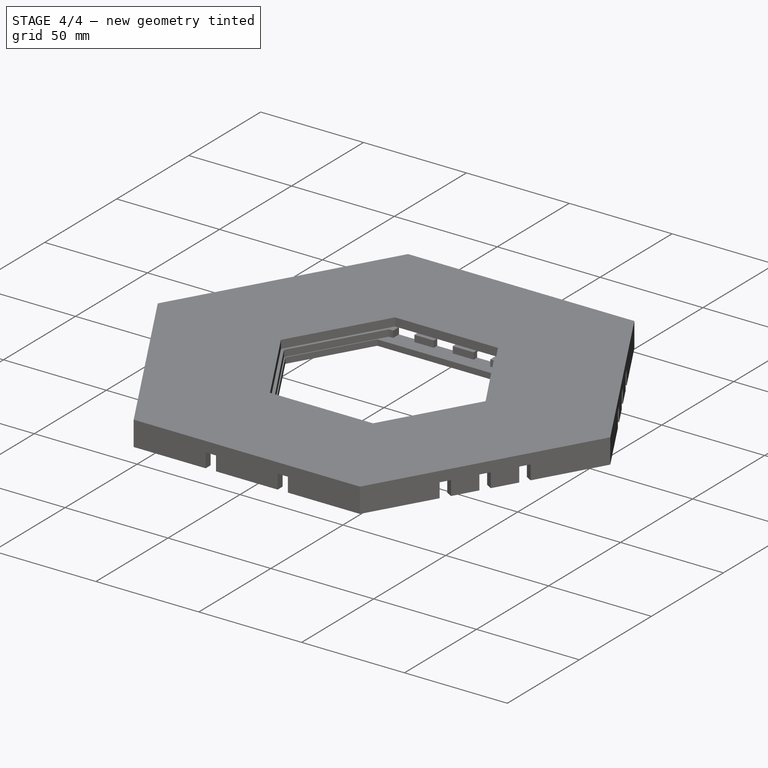
[diagram: stage 4 of 4 — iso view after this stage's code; geometry added in this stage tinted green]
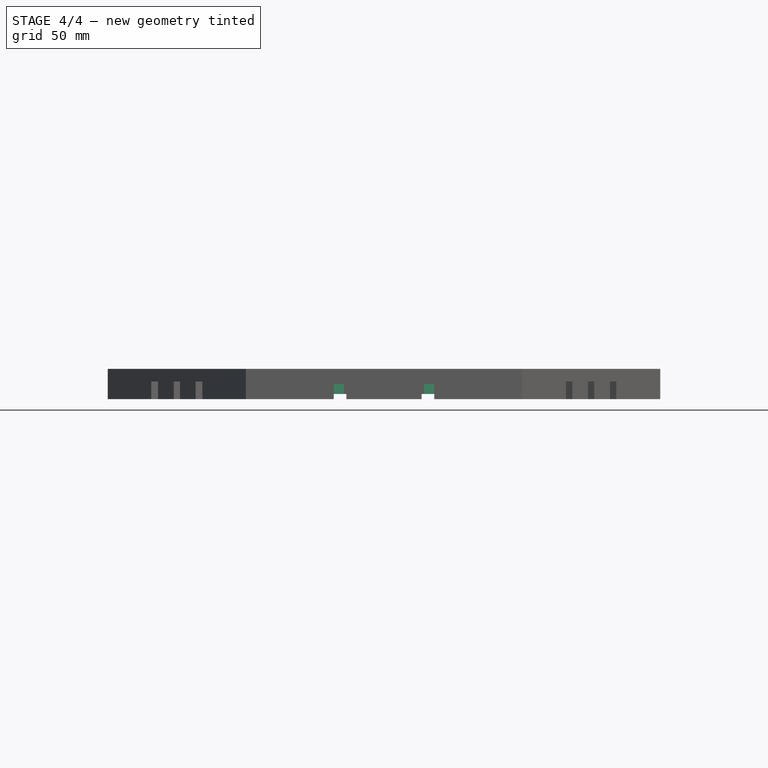
[diagram: stage 4 of 4 — front view after this stage's code; geometry added in this stage tinted green]
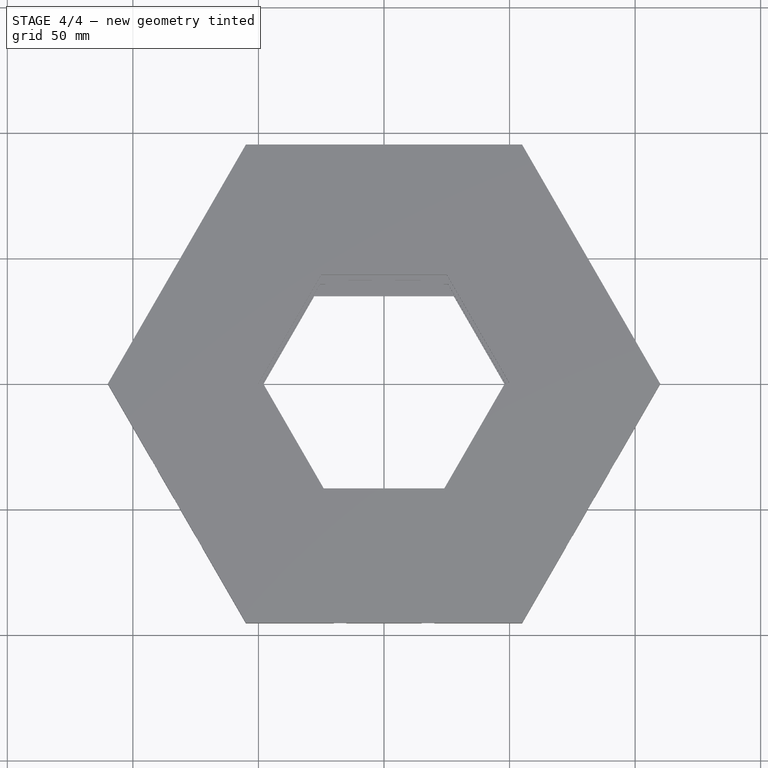
[diagram: stage 4 of 4 — top view after this stage's code; geometry added in this stage tinted green]
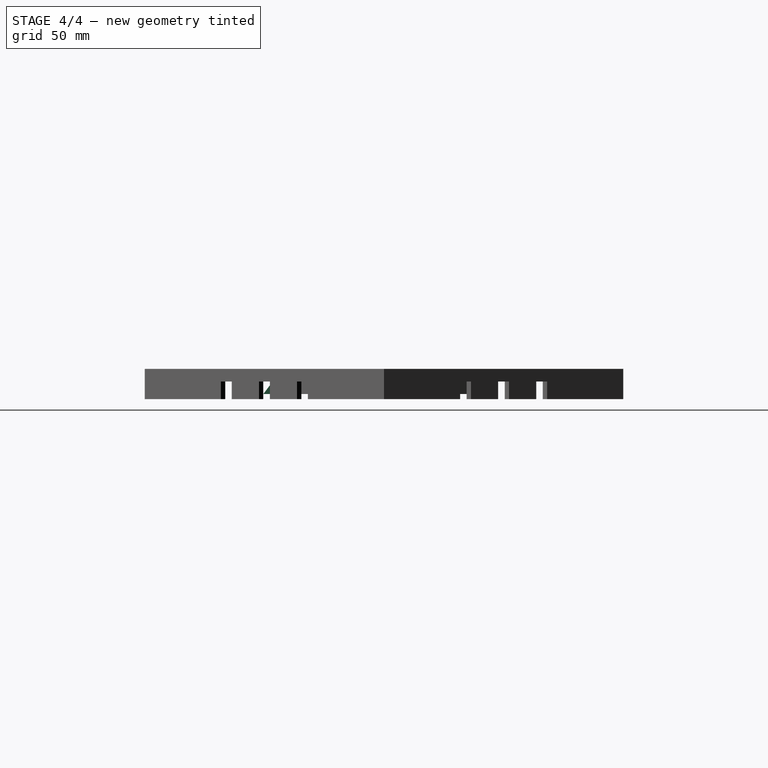
[diagram: stage 4 of 4 — right view after this stage's code; geometry added in this stage tinted green]
FEATURE [Sketcher::SketchObject] Sketch009
  FullyConstrained = true
  MapMode = 5
  Placement = pos=(0,-45.0333,0) rot=(1,0,0;1.5708rad)
  Support = -> [Pocket006]
  sketch-geometry (8):
    g0: LineSegment StartX=-26 StartY=2 StartZ=0 EndX=-16 EndY=2 EndZ=0
    g1: LineSegment StartX=-16 StartY=2 StartZ=0 EndX=-16 EndY=6 EndZ=0
    g2: LineSegment StartX=-16 StartY=6 StartZ=0 EndX=-26 EndY=6 EndZ=0
    g3: LineSegment StartX=-26 StartY=6 StartZ=0 EndX=-26 EndY=2 EndZ=0
    g4: LineSegment StartX=16 StartY=2 StartZ=0 EndX=26 EndY=2 EndZ=0
    g5: LineSegment StartX=26 StartY=2 StartZ=0 EndX=26 EndY=6 EndZ=0
    g6: LineSegment StartX=26 StartY=6 StartZ=0 EndX=16 EndY=6 EndZ=0
    g7: LineSegment StartX=16 StartY=6 StartZ=0 EndX=16 EndY=2 EndZ=0
  constraints (23):
    c: Coincident(g0,g1)
    c: Coincident(g1,g2)
    c: Coincident(g2,g3)
    c: Coincident(g3,g0)
    c: Horizontal(g0)
    c: Horizontal(g2)
    c: Vertical(g1)
    c: Vertical(g3)
    c: Coincident(g4,g5)
    c: Coincident(g5,g6)
    c: Coincident(g6,g7)
    c: Coincident(g7,g4)
    c: Horizontal(g4)
    c: Horizontal(g6)
    c: Vertical(g5)
    c: Vertical(g7)
    c: Equal(g0,g4)
    c: Symmetric(g0,g4,g-2)
    c: DistanceY(g-1,g0) = 2
    c: DistanceY(g0,g1) = 4
    c: DistanceX(g0,g0) = 10
    c: DistanceX(g0,g-1) = 16
    c: Equal(g1,g7)
FEATURE [PartDesign::Pad] Pad001
  BaseFeature = -> Pocket006
  Direction = (1,1,1)
  Length = 3
  Length2 = 100
  Profile = -> Sketch009
  Type = 0
FEATURE [Sketcher::SketchObject] Sketch010
  FullyConstrained = false
  MapMode = 5
  Placement = pos=(-26,0,0) rot=(0.57735,-0.57735,-0.57735;2.0944rad)
  Support = -> [Pad001]
  sketch-geometry (3):
    g0: LineSegment StartX=45.0492 StartY=6.01178 StartZ=0 EndX=48.0492 EndY=2.01178 EndZ=0
    g1: LineSegment StartX=48.0492 StartY=6.01178 StartZ=0 EndX=45.0492 EndY=6.01178 EndZ=0
    g2: LineSegment StartX=48.0492 StartY=6.01178 StartZ=0 EndX=48.0492 EndY=2.01178 EndZ=0
  constraints (7):
    c: Coincident(g1,g0)
    c: Horizontal(g1)
    c: Coincident(g2,g1)
    c: Coincident(g2,g0)
    c: Vertical(g2)
    c: DistanceX(g1,g1) = 3
    c: DistanceY(g2,g2) = 4
FEATURE [PartDesign::Pocket] Pocket007
  BaseFeature = -> Pad001
  Length = 52
  Length2 = 100
  Profile = -> Sketch010
  Type = 0
FEATURE [PartDesign::Body] Body
  Group = -> [Sketch,Pad,Sketch001,Pocket,Sketch002,Pocket001,Sketch003,Pocket002,Sketch005,Pocket003,Sketch006,Pocket004,Sketch007,Pocket005,Sketch008,Pocket006,Sketch009,Pad001,Sketch010,Pocket007]
  Origin = -> Origin
  Tip = -> Pocket007
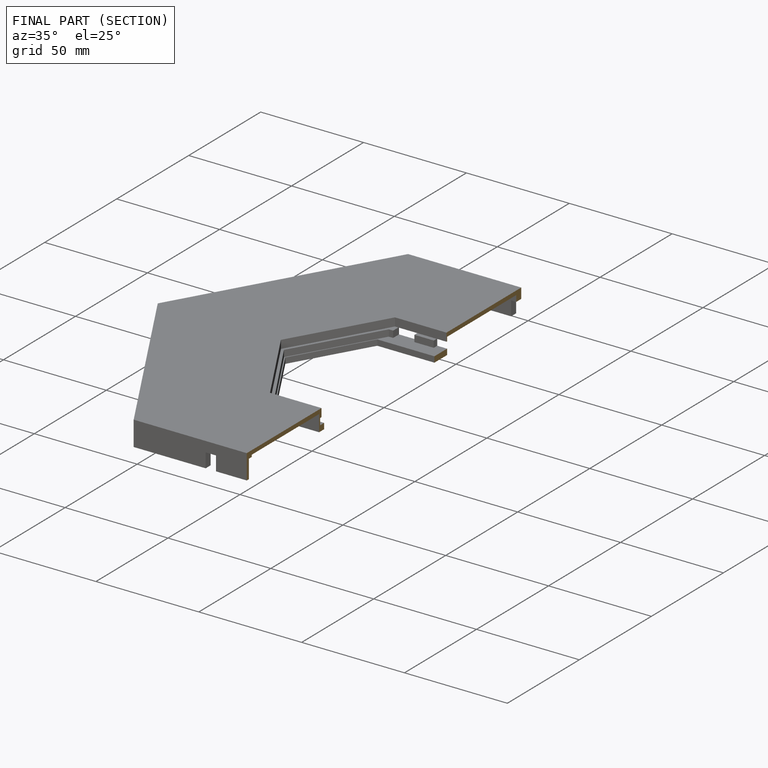
[diagram: finished part — half-section view (interior)]
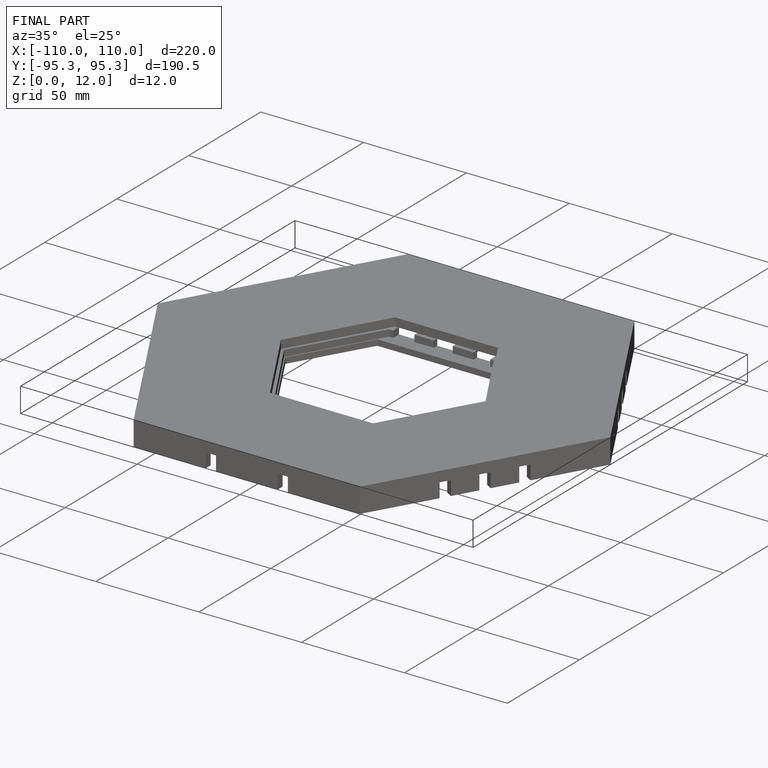
[diagram: finished part — iso view with bounding-box wireframe]
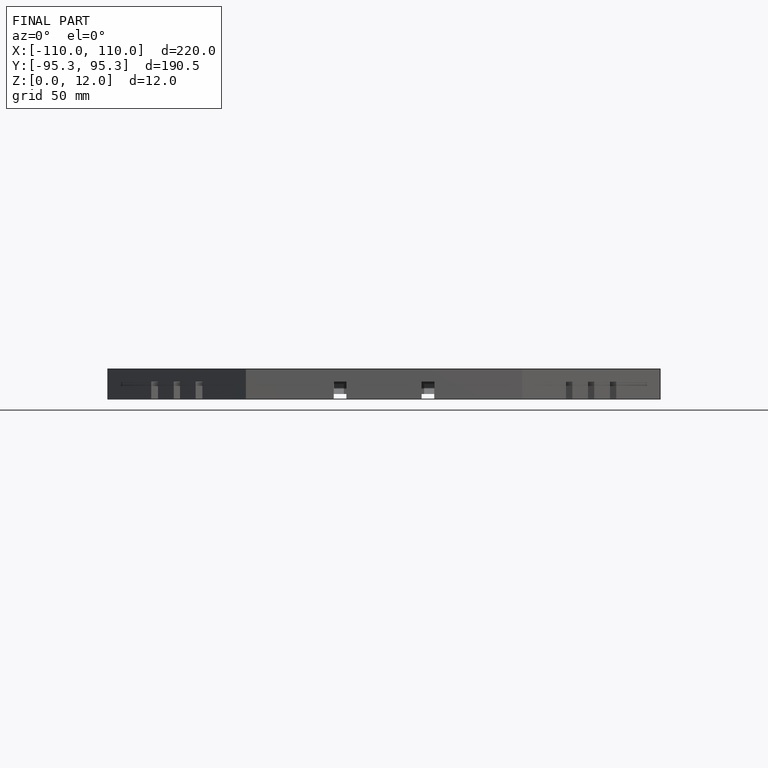
[diagram: finished part — front view with bounding-box wireframe]
